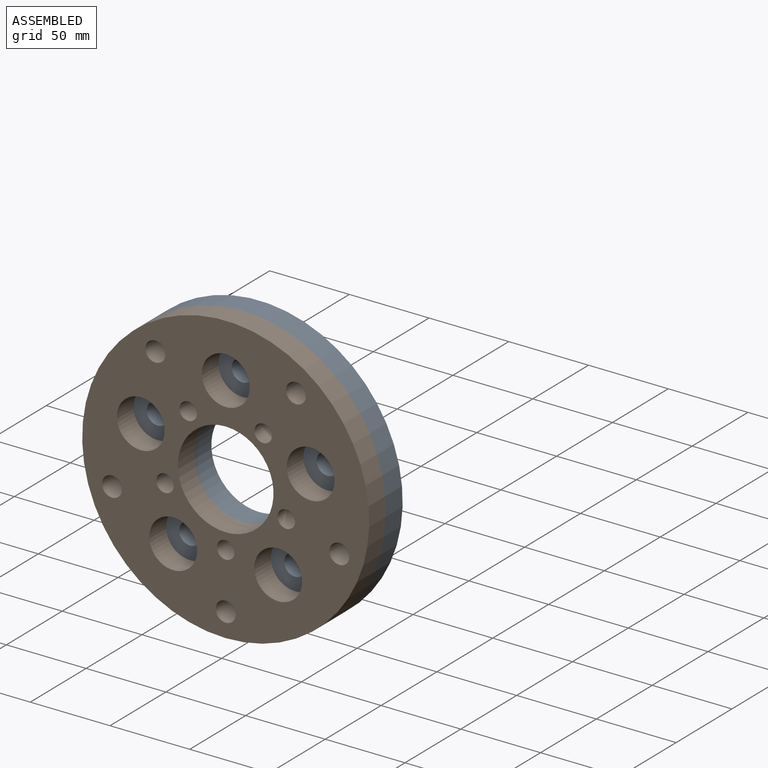
[diagram: assembled view]
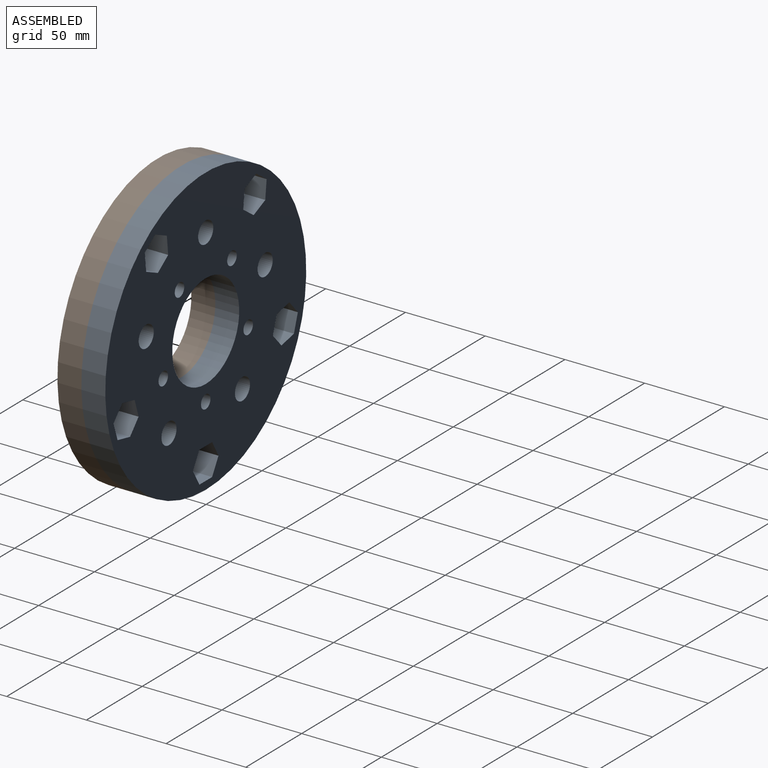
[diagram: assembled view, second angle]
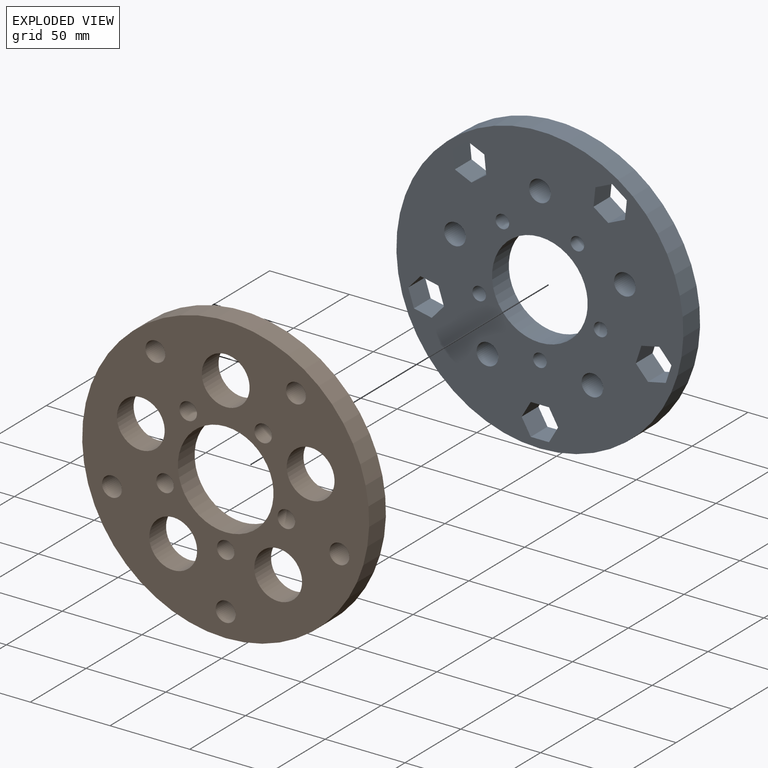
[diagram: exploded view]
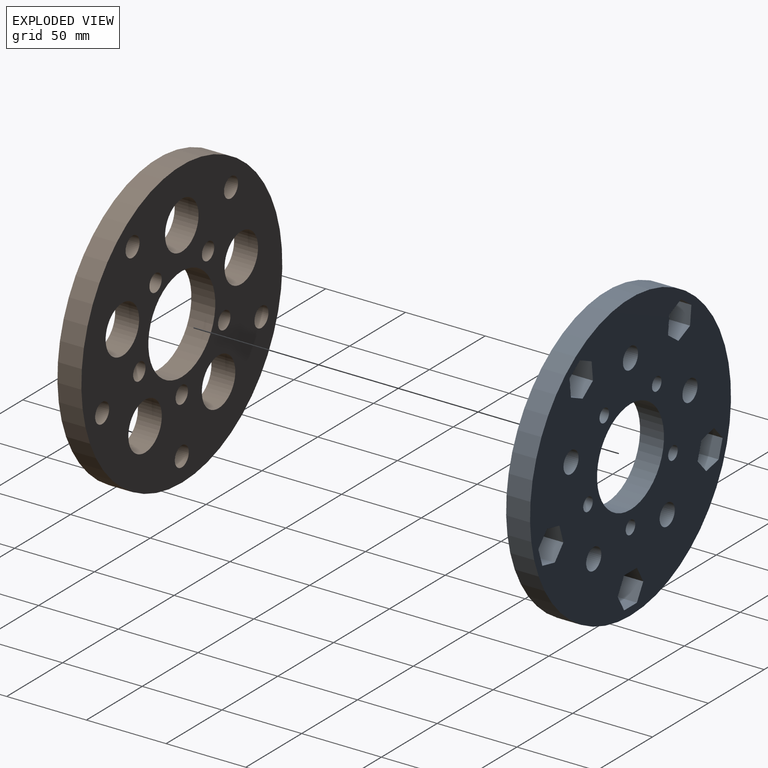
[diagram: exploded view, second angle]
ASSEMBLY  parts=2 mates=2
PART A: 44 faces, bbox 180x15x180 mm
  f0: cylinder r=90mm len=180mm, axis (0,1,0), area 8482.3mm2, adj f1,f2
  f1: plane 180x180mm, normal (0,-1,0), area 19922.5mm2, adj f0,f3,f4,f5,f6,f7,f8,f9
  f2: plane 180x180mm, normal (0,1,0), area 19922.5mm2, adj f0,f3,f4,f5,f6,f7,f8,f9
  f3: cylinder r=6.75mm len=15mm, axis (0,1,0), area 636.2mm2, adj f1,f2
  f4: cylinder r=4.25mm len=15mm, axis (0,1,0), area 400.6mm2, adj f1,f2
  f5: cylinder r=4.25mm len=15mm, axis (0,1,0), area 400.6mm2, adj f1,f2
  f6: plane 15x9.9mm, normal (-0.87,0,0.5), area 171.5mm2, adj f1,f2,f7,f11
  f7: plane 15x9.9mm, normal (-0.87,0,-0.5), area 171.5mm2, adj f1,f2,f6,f8
  f8: plane 15x11.43mm, normal (0,0,-1), area 171.5mm2, adj f1,f2,f7,f9
  f9: plane 15x9.9mm, normal (0.87,0,-0.5), area 171.5mm2, adj f1,f2,f8,f10
  f10: plane 15x9.9mm, normal (0.87,0,0.5), area 171.5mm2, adj f1,f2,f9,f11
  f11: plane 15x11.43mm, normal (0,0,1), area 171.5mm2, adj f1,f2,f6,f10
  f12: plane 15x11.18mm, normal (0.21,0,-0.98), area 171.5mm2, adj f1,f2,f13,f17
  f13: plane 15x10.87mm, normal (0.95,0,-0.31), area 171.5mm2, adj f1,f2,f12,f14
  f14: plane 15x8.5mm, normal (0.74,0,0.67), area 171.5mm2, adj f1,f2,f13,f15
  f15: plane 15x11.18mm, normal (-0.21,0,0.98), area 171.5mm2, adj f1,f2,f14,f16
  f16: plane 15x10.87mm, normal (-0.95,0,0.31), area 171.5mm2, adj f1,f2,f15,f17
  f17: plane 15x8.5mm, normal (-0.74,0,-0.67), area 171.5mm2, adj f1,f2,f12,f16
  f18: plane 15x11.37mm, normal (0.99,0,-0.1), area 171.5mm2, adj f1,f2,f19,f23
  f19: plane 15x9.25mm, normal (0.59,0,0.81), area 171.5mm2, adj f1,f2,f18,f20
  f20: plane 15x10.44mm, normal (-0.41,0,0.91), area 171.5mm2, adj f1,f2,f19,f21
  f21: plane 15x11.37mm, normal (-0.99,0,0.1), area 171.5mm2, adj f1,f2,f20,f22
  f22: plane 15x9.25mm, normal (-0.59,0,-0.81), area 171.5mm2, adj f1,f2,f21,f23
  f23: plane 15x10.44mm, normal (0.41,0,-0.91), area 171.5mm2, adj f1,f2,f18,f22
  f24: plane 15x10.44mm, normal (0.41,0,0.91), area 171.5mm2, adj f1,f2,f25,f29
  f25: plane 15x9.25mm, normal (-0.59,0,0.81), area 171.5mm2, adj f1,f2,f24,f26
  f26: plane 15x11.37mm, normal (-0.99,0,-0.1), area 171.5mm2, adj f1,f2,f25,f27
  f27: plane 15x10.44mm, normal (-0.41,0,-0.91), area 171.5mm2, adj f1,f2,f26,f28
  f28: plane 15x9.25mm, normal (0.59,0,-0.81), area 171.5mm2, adj f1,f2,f27,f29
  f29: plane 15x11.37mm, normal (0.99,0,0.1), area 171.5mm2, adj f1,f2,f24,f28
  f30: plane 15x8.5mm, normal (-0.74,0,0.67), area 171.5mm2, adj f1,f2,f31,f35
  f31: plane 15x10.87mm, normal (-0.95,0,-0.31), area 171.5mm2, adj f1,f2,f30,f32
  f32: plane 15x11.18mm, normal (-0.21,0,-0.98), area 171.5mm2, adj f1,f2,f31,f33
  f33: plane 15x8.5mm, normal (0.74,0,-0.67), area 171.5mm2, adj f1,f2,f32,f34
  f34: plane 15x10.87mm, normal (0.95,0,0.31), area 171.5mm2, adj f1,f2,f33,f35
  f35: plane 15x11.18mm, normal (0.21,0,0.98), area 171.5mm2, adj f1,f2,f30,f34
  f36: cylinder r=6.75mm len=15mm, axis (0,1,0), area 636.2mm2, adj f1,f2
  f37: cylinder r=6.75mm len=15mm, axis (0,1,0), area 636.2mm2, adj f1,f2
  f38: cylinder r=6.75mm len=15mm, axis (0,1,0), area 636.2mm2, adj f1,f2
  f39: cylinder r=6.75mm len=15mm, axis (0,1,0), area 636.2mm2, adj f1,f2
  f40: cylinder r=4.25mm len=15mm, axis (0,1,0), area 400.6mm2, adj f1,f2
  f41: cylinder r=4.25mm len=15mm, axis (0,1,0), area 400.6mm2, adj f1,f2
  f42: cylinder r=4.25mm len=15mm, axis (0,1,0), area 400.6mm2, adj f1,f2
  f43: cylinder r=30mm len=60mm, axis (0,1,0), area 2827.4mm2, adj f1,f2
PART B: 19 faces, bbox 180x15x180 mm
  f0: cylinder r=90mm len=180mm, axis (0,1,0), area 8482.3mm2, adj f1,f2
  f1: plane 180x180mm, normal (0,-1,0), area 17996.4mm2, adj f0,f3,f4,f5,f6,f7,f8,f9
  f2: plane 180x180mm, normal (0,1,0), area 17996.4mm2, adj f0,f3,f4,f5,f6,f7,f8,f9
  f3: cylinder r=15mm len=30mm, axis (0,1,0), area 1413.7mm2, adj f1,f2
  f4: cylinder r=15mm len=30mm, axis (0,1,0), area 1413.7mm2, adj f1,f2
  f5: cylinder r=15mm len=30mm, axis (0,1,0), area 1413.7mm2, adj f1,f2
  f6: cylinder r=15mm len=30mm, axis (0,1,0), area 1413.7mm2, adj f1,f2
  f7: cylinder r=6.25mm len=15mm, axis (0,1,0), area 589mm2, adj f1,f2
  f8: cylinder r=6.25mm len=15mm, axis (0,1,0), area 589mm2, adj f1,f2
  f9: cylinder r=6.25mm len=15mm, axis (0,1,0), area 589mm2, adj f1,f2
  f10: cylinder r=6.25mm len=15mm, axis (0,1,0), area 589mm2, adj f1,f2
  f11: cylinder r=5.5mm len=15mm, axis (0,1,0), area 518.4mm2, adj f1,f2
  f12: cylinder r=5.5mm len=15mm, axis (0,1,0), area 518.4mm2, adj f1,f2
  f13: cylinder r=5.5mm len=15mm, axis (0,1,0), area 518.4mm2, adj f1,f2
  f14: cylinder r=15mm len=30mm, axis (0,1,0), area 1413.7mm2, adj f1,f2
  f15: cylinder r=30mm len=60mm, axis (0,1,0), area 2827.4mm2, adj f1,f2
  f16: cylinder r=5.5mm len=15mm, axis (0,1,0), area 518.4mm2, adj f1,f2
  f17: cylinder r=5.5mm len=15mm, axis (0,1,0), area 518.4mm2, adj f1,f2
  f18: cylinder r=6.25mm len=15mm, axis (0,1,0), area 589mm2, adj f1,f2
PLACE A t=(42.4,-5.5,18.83)mm
PLACE B t=(42.4,-20.5,18.83)mm
MATE planar B.f8 <-> A.f1  axis (0,1,0) through (-1.68,-20.5,79.5)mm
MATE planar A.f43 <-> B.f15  axis (0,-1,0) through (42.4,-20.5,18.83)mm
